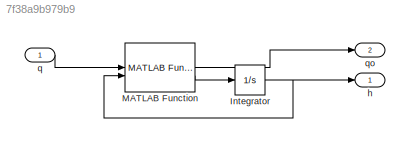
MODEL slx_7f38a9b979b9
KIND model
CONFIG AbsTol = auto
CONFIG EnableMultiTasking = off
CONFIG FixedStep = auto
CONFIG MaxStep = auto
CONFIG MinStep = auto
CONFIG RelTol = 1e-3
CONFIG SampleTimeConstraint = Unconstrained
CONFIG SolverName = VariableStepAuto
CONFIG StartTime = 0.0
CONFIG StopTime = 10.0
BLOCK [Integrator] Integrator
  InitialCondition = h0
BLOCK [Reference] MATLAB Function  REF=mci_models/Fluid Systems/Tank with Outflow/MATLAB Function  (lib defined in slx_e9e95a5c75ca)
  SourceBlock = mci_models/Fluid Systems/Tank with Outflow/MATLAB Function
  SourceType = SubSystem
BLOCK [Outport] h
  VectorParamsAs1DForOutWhenUnconnected = off
BLOCK [Inport] q
BLOCK [Outport] qo
  Port = 2
  VectorParamsAs1DForOutWhenUnconnected = off
NET Integrator:1 -> MATLAB Function:2, h:1
LINE MATLAB Function:1 -> qo:1
LINE MATLAB Function:2 -> Integrator:1
LINE q:1 -> MATLAB Function:1
note: NET lines group one-source signal fan-out (src -> all destinations, sorted); 1:1 wires keep LINE
